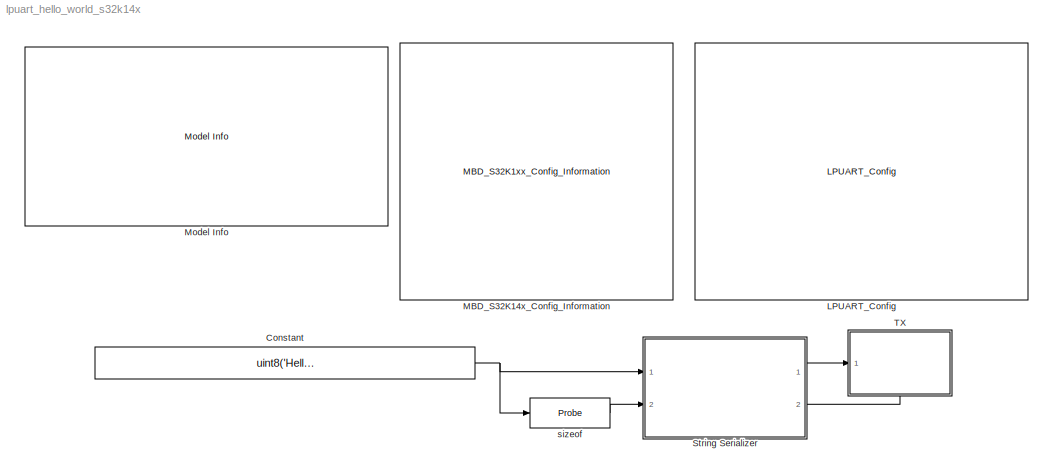
MODEL lpuart_hello_world_s32k14x
KIND model
CONFIG InitFcn = mbd_s32k_consistency_checks(bdroot(gcs));
BLOCK [Constant] Constant
  SID = 41
  SampleTime = -1
  Value = uint8('Hello World!!! Press RESET to see this msg again')
BLOCK [Reference] LPUART_Config  REF=mbd_s32k1xx_ec_toolbox/Communication Blocks/UART Blocks/LPUART_Config
  MultiThreadCoSim = auto
  Ports = []
  Priority = 1
  SID = 2
  SourceBlock = mbd_s32k1xx_ec_toolbox/Communication Blocks/UART Blocks/LPUART_Config
  SourceType = lpuart_s32k_config
  baudrate = 115200
  bothedge = rising edge
  brk13 = 13 - 16 bit times
  cts = PTA6: [LPUART1_CTS | Clear To Send (bar)]
  databits = 8
  instance = 1
  lbkde = 13 - 16 bit times
  parity = None
  rts = PTA7: [LPUART1_RTS | Request To Send]
  rx = PTC6: [LPUART1_RX | Receive]
  rxinv = off
  sbns = 1
  show_adv_opts = on
  tx = PTC7: [LPUART1_TX | Transmit]
  txinv = off
BLOCK [Reference] MBD_S32K14x_Config_Information  REF=mbd_s32k1xx_ec_toolbox/MBD_S32K1xx_Config_Information
  ADC_PcrCheckEnDis = on
  AMMCLIB_PcrCheckEnDis = on
  CMP_PcrCheckEnDis = on
  CSEc_PcrCheckEnDis = on
  ConfigParams_PcrCheckEnDis = on
  FM_PcrCheckEnDis = on
  FTM_Dual_Edge_Inputs_PcrCheckEnDis = on
  FTM_Hall_Sensor_Inputs_PcrCheckEnDis = on
  FTM_Input_Edge_Inputs_PcrCheckEnDis = on
  FTM_PWM_PcrCheckEnDis = on
  FTM_Quadrature_Inputs_PcrCheckEnDis = on
  FlexCAN_PcrCheckEnDis = on
  FlexIO_PcrCheckEnDis = on
  GPIO_InputPcrCheckEnDis = on
  GPIO_OutputPcrCheckEnDis = on
  LIN_PcrCheckEnDis = on
  LPI2C_PcrCheckEnDis = on
  LPSPI_PcrCheckEnDis = on
  LPTMR_PcrCheckEnDis = on
  LPUART_PcrCheckEnDis = on
  ModelRef_PcrCheckEnDis = on
  MultiThreadCoSim = auto
  PDB0_PcrCheckEnDis = on
  PIT_PcrCheckEnDis = on
  Ports = []
  Priority = 0
  Profile_PcrCheckEnDis = on
  RTC_PcrCheckEnDis = on
  SBC_PcrCheckEnDis = on
  SID = 25
  SourceBlock = mbd_s32k1xx_ec_toolbox/MBD_S32K1xx_Config_Information
  SourceType = MBDTBX_EC_S32K
  WDOG_PcrCheckEnDis = on
  config_params = []
  disp_str = Target : S32K144-64KB_SRAM\nPackage : 100-pin\nSystem clock : 80 MHz\nXTAL clock : External 8 MHz\nCompiler : GCC\nTarget Type : FLASH\nDownload Code after build : (OpenSDA: E)\nStep Tick Interrupt Priority : 15
  ds_import_enable = on
  eDMA_PcrCheckEnDis = on
  gcc_target_assemble_opts = -mcpu=cortex-m4 -mthumb -mfloat-abi=hard -mfpu=fpv4-sp-d16 -g
  gcc_target_compile_opts = -mcpu=cortex-m4 -mthumb -mfloat-abi=hard -mfpu=fpv4-sp-d16 -O1 -g -gstrict-dwarf
  gcc_target_default_lcf = on
  gcc_target_link_opts = -mcpu=cortex-m4 -mthumb -mfloat-abi=hard -mfpu=fpv4-sp-d16
  gcc_target_user_lcf = S32K144_64_flash.ld
  ghs_target_assemble_opts = -cpu=cortexm4f -fpu=vfpv4_d16
  ghs_target_compile_opts = -cpu=cortexm4f -thumb -DARM_MATH_CM4 -fpu=vfpv4_d16 -fsingle -Ogeneral -Wundef -Wimplicit-int -Wshadow -Wtrigraphs --no_commons --gnu_asm -gnu99 -gdwarf-2 -G
  ghs_target_default_lcf = off
  ghs_target_link_opts = -cpu=cortexm4f -thumb -fpu=vfpv4_d16
  ghs_target_user_lcf = S32K144_64_flash.ld
  iar_target_assemble_opts = --cpu Cortex-M4F --thumb --fpu VFPv4_sp
  iar_target_compile_opts = --cpu=Cortex-M4F --thumb --fpu=VFPv4_sp -Ol -e --debug --dlib_config normal
  iar_target_default_lcf = off
  iar_target_link_opts = --no_exceptions --vfe --inline
  iar_target_user_lcf = S32K144_64_flash.icf
  mbdt_ver = 0
  mcu_steptick_prio = 15
  mcu_steptick_timer = LPIT Channel 0
  mcu_system_clock_freq = 80
  mcu_target_name = S32K144
  mcu_target_package = 100-LQFP
  mcu_target_sram_size = 64KB
  mcu_xtal_freq = External 8
  pil_download_enable = off
  pil_download_rate = 57600
  pil_opensda_drive = D: EVB-S32K144
  pil_opensda_drive_custom = D
  pil_uart_instance = 1
  pil_uart_rx = PTC6: [LPUART1_RX | Receive]
  pil_uart_tx = PTC7: [LPUART1_TX | Transmit]
  rbl_com_port = Custom
  rbl_com_port_custom = COM1
  rbl_download_enable = on
  rbl_download_interface = OpenSDA
  rbl_restart_request = off
  rbl_start_delay = 5000000
  target_compiler = GCC
  target_memory = FLASH
BLOCK [Reference] Model Info  REF=simulink/Model-Wide\nUtilities/Model Info
  DisplayStringWithTags = Model Name: %<ModelName>\n\nDescription: %<Description>
  Frame = off
  HorizontalTextAlignment = Left
  LeftAlignmentValue = 0.02
  MaskDisplayString = Model Name: lpuart_hello_world_s32k14x\\n\\nDescription: This demo shows how to configure the S32K144EVB to send a \\nDATA pattern over the UART. \\n\\nHW prerequisite:\\n- S32K144EVB\\n\\nValidation:\\n- Test is succesful if 'Hello World' message is displayed in a host UART terminal\\n- Use any UART terminal to receive the message from the EVB. \\n- Press RESTART button to trigger S32K144 to rese...<+15ch>
  Ports = []
  SID = 51
  SourceBlock = simulink/Model-Wide\nUtilities/Model Info
  SourceProductBaseCode = SL
  SourceProductName = Simulink
  SourceType = CMBlock
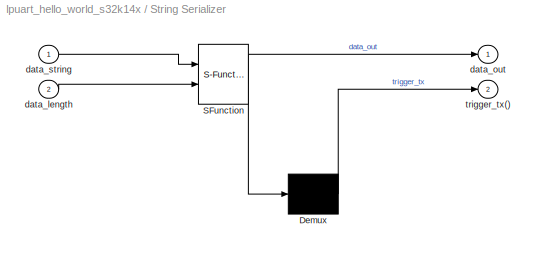
BLOCK [SubSystem] String Serializer
  ErrorFcn = Stateflow.Translate.translate
  PermitHierarchicalResolution = ExplicitOnly
  Ports = [2, 2]
  RequestExecContextInheritance = off
  SFBlockType = Chart
  SID = 43
  TreatAsAtomicUnit = on
BLOCK [Demux] String Serializer/ Demux 
  Outputs = 1
  Ports = [1, 1]
  SID = 43::94
BLOCK [S-Function] String Serializer/ SFunction 
  EnableBusSupport = on
  FunctionName = sf_sfun
  PortCounts = [2 2]
  Ports = [2, 2]
  SFcnIsStateOwnerBlock = off
  SFunctionDeploymentMode = off
  SID = 43::93
  Tag = Stateflow S-Function lpuart_hello_world_s32k14x 3
BLOCK [Inport] String Serializer/data_length
  IconDisplay = Port number
  Port = 2
  SID = 43::78
BLOCK [Outport] String Serializer/data_out
  IconDisplay = Port number
  SID = 43::81
BLOCK [Inport] String Serializer/data_string
  IconDisplay = Port number
  SID = 43::77
BLOCK [Outport] String Serializer/trigger_tx()
  IconDisplay = Port number
  Port = 2
  SID = 43::80
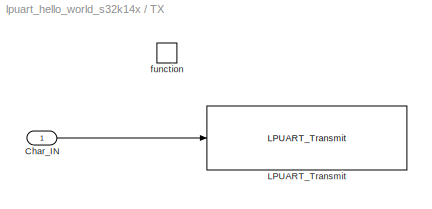
BLOCK [SubSystem] TX
  Ports = [1, 0, 0, 1]
  RequestExecContextInheritance = off
  SID = 44
  TreatAsAtomicUnit = on
BLOCK [Inport] TX/Char_IN
  IconDisplay = Port number
  SID = 50
BLOCK [Reference] TX/LPUART_Transmit  REF=mbd_s32k1xx_ec_toolbox/Communication Blocks/UART Blocks/LPUART_Transmit
  MultiThreadCoSim = auto
  Ports = [1]
  Priority = 2
  SID = 27
  SourceBlock = mbd_s32k1xx_ec_toolbox/Communication Blocks/UART Blocks/LPUART_Transmit
  SourceType = lpuart_s32k_transmit
  instance = 1
BLOCK [TriggerPort] TX/function
  Ports = []
  SID = 45
  StatesWhenEnabling = held
  TriggerType = function-call
  VariantControl = Variant
BLOCK [Probe] sizeof
  Ports = [1, 1]
  ProbeComplexSignal = off
  ProbeSampleTime = off
  SID = 42
NET Constant:1 -> String Serializer:1, sizeof:1
LINE String Serializer/ Demux :1 -> String Serializer/trigger_tx():1
LINE String Serializer/ SFunction :1 -> String Serializer/ Demux :1
LINE String Serializer/ SFunction :2 -> String Serializer/data_out:1
LINE String Serializer/data_length:1 -> String Serializer/ SFunction :2
LINE String Serializer/data_string:1 -> String Serializer/ SFunction :1
LINE String Serializer:1 -> TX:1
LINE String Serializer:2 -> TX:trigger
LINE TX/Char_IN:1 -> TX/LPUART_Transmit:1
LINE sizeof:1 -> String Serializer:2
note: NET lines group one-source signal fan-out (src -> all destinations, sorted); 1:1 wires keep LINE
CHART String Serializer states=3 transitions=5
  STATE_LABEL 'Initialize\\nentry:\\ncounter = 1;\\ndata_out = uint8(32);\\n'
  STATE_LABEL 'Serialize\\nentry:\\ndata_out = uint8(data_string(counter));\\ncounter = counter+1;'
  STATE_LABEL 'Stop\\n'
